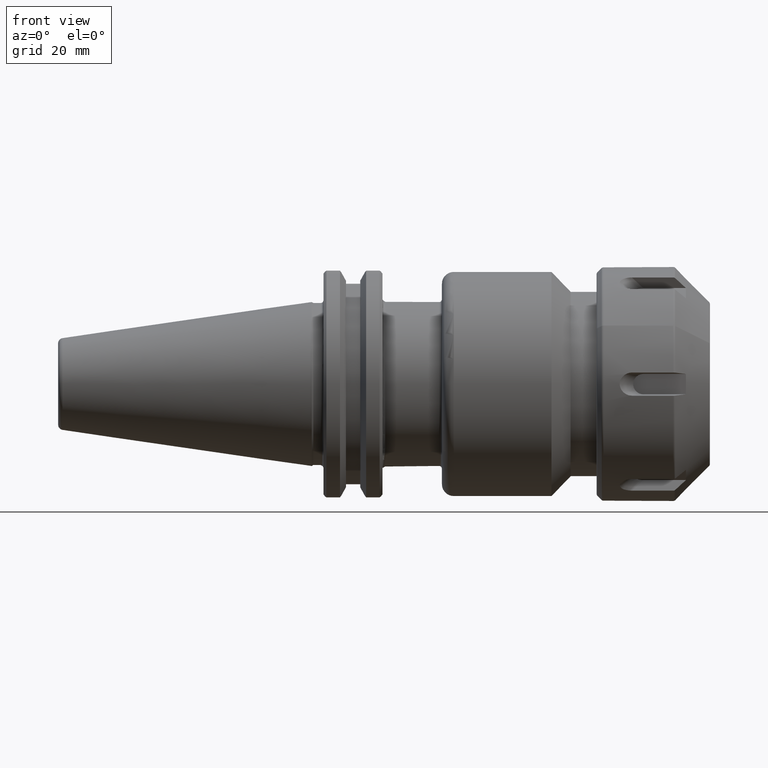
[diagram: clean part render]
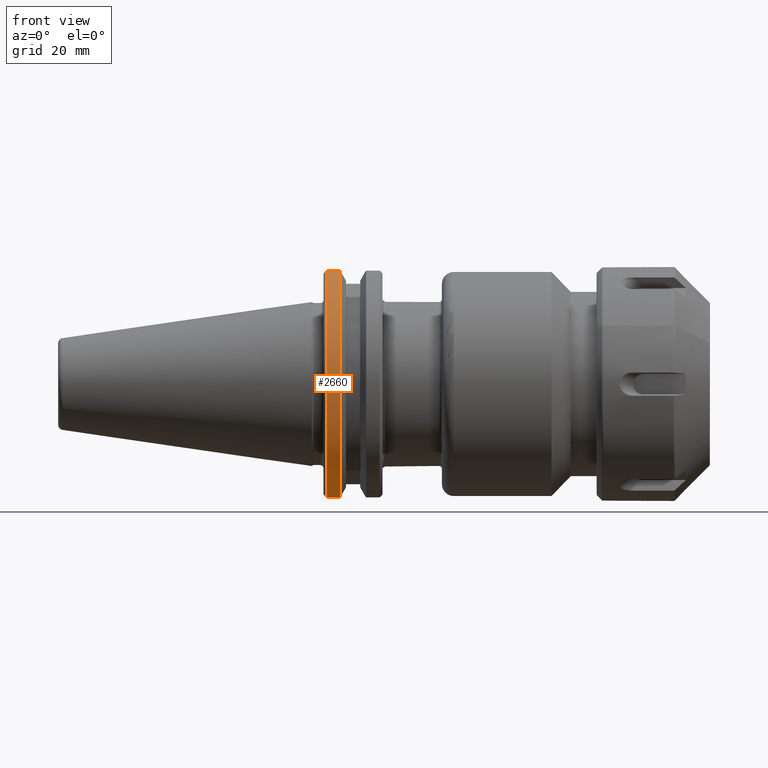
[diagram: same view with one face highlighted and labeled with its STEP entity id]
A machine part, front view. The second image highlights one B-rep face of the part: STEP entity #2660.
In plain terms, the highlighted cylindrical surface (partial cylindrical patch) has radius 31.75 mm, axis along (1, 0, 0).
Its self-contained STEP definition (entity closure, byte-faithful):
#2060=CARTESIAN_POINT('',(0.155000000000203,-0.344098106797811,-1.201705659842776));
#2061=VERTEX_POINT('',#2060);
#2075=CARTESIAN_POINT('',(0.155000000000203,-0.344098106797854,1.201705659842764));
#2076=VERTEX_POINT('',#2075);
#2077=CARTESIAN_POINT('',(0.155000000000203,0.0,0.0));
#2078=DIRECTION('',(-1.0,-1.624514E-013,0.0));
#2079=DIRECTION('',(1.624514E-013,-1.0,0.0));
#2080=AXIS2_PLACEMENT_3D('',#2077,#2078,#2079);
#2081=CIRCLE('',#2080,1.25);
#2082=EDGE_CURVE('',#2061,#2076,#2081,.T.);
#2109=CARTESIAN_POINT('',(0.299526127773361,-0.344098106797811,-1.201705659842776));
#2110=VERTEX_POINT('',#2109);
#2124=CARTESIAN_POINT('',(0.299526127773361,-0.344098106797811,-1.201705659842776));
#2125=DIRECTION('',(-1.0,0.0,0.0));
#2126=VECTOR('',#2125,0.144526127773158);
#2127=LINE('',#2124,#2126);
#2128=EDGE_CURVE('',#2110,#2061,#2127,.T.);
#2165=CARTESIAN_POINT('',(0.299526127773361,-0.344098106797854,1.201705659842764));
#2166=VERTEX_POINT('',#2165);
#2167=CARTESIAN_POINT('',(0.155000000000203,-0.344098106797854,1.201705659842764));
#2168=DIRECTION('',(1.0,0.0,0.0));
#2169=VECTOR('',#2168,0.144526127773158);
#2170=LINE('',#2167,#2169);
#2171=EDGE_CURVE('',#2076,#2166,#2170,.T.);
#2591=CARTESIAN_POINT('',(0.299526127773361,0.0,0.0));
#2592=DIRECTION('',(-1.0,-1.624514E-013,0.0));
#2593=DIRECTION('',(-1.624514E-013,1.0,0.0));
#2594=AXIS2_PLACEMENT_3D('',#2591,#2592,#2593);
#2595=CIRCLE('',#2594,1.25);
#2596=EDGE_CURVE('',#2110,#2166,#2595,.T.);
#2649=CARTESIAN_POINT('',(0.4375,0.0,0.0));
#2650=DIRECTION('',(1.0,0.0,0.0));
#2651=DIRECTION('',(-1.624514E-013,1.0,0.0));
#2652=AXIS2_PLACEMENT_3D('',#2649,#2650,#2651);
#2653=CYLINDRICAL_SURFACE('',#2652,1.25);
#2654=ORIENTED_EDGE('',*,*,#2128,.F.);
#2655=ORIENTED_EDGE('',*,*,#2596,.T.);
#2656=ORIENTED_EDGE('',*,*,#2171,.F.);
#2657=ORIENTED_EDGE('',*,*,#2082,.F.);
#2658=EDGE_LOOP('',(#2654,#2655,#2656,#2657));
#2659=FACE_OUTER_BOUND('',#2658,.T.);
#2660=ADVANCED_FACE('',(#2659),#2653,.T.);